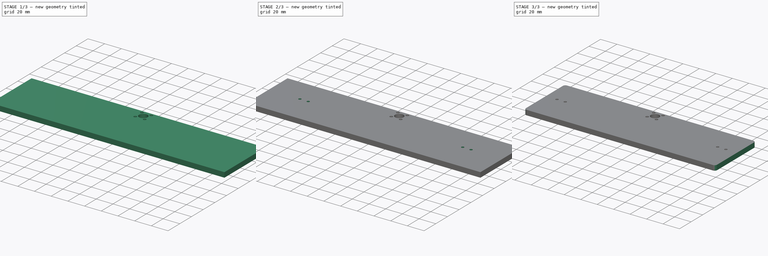
[diagram: build sequence overview — one tinted view per stage of 3, left to right]
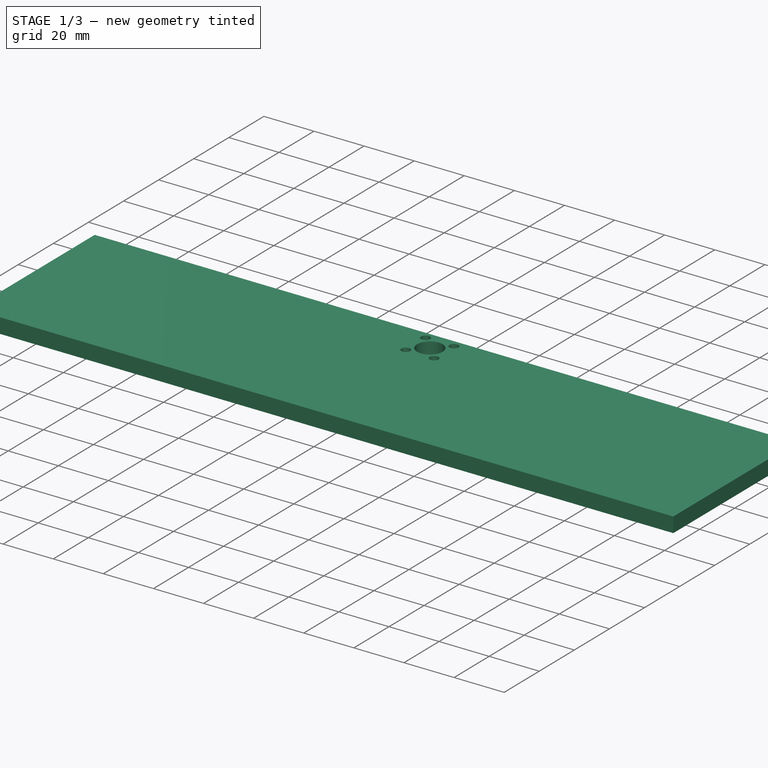
[diagram: stage 1 of 3 — iso view after this stage's code; geometry added in this stage tinted green]
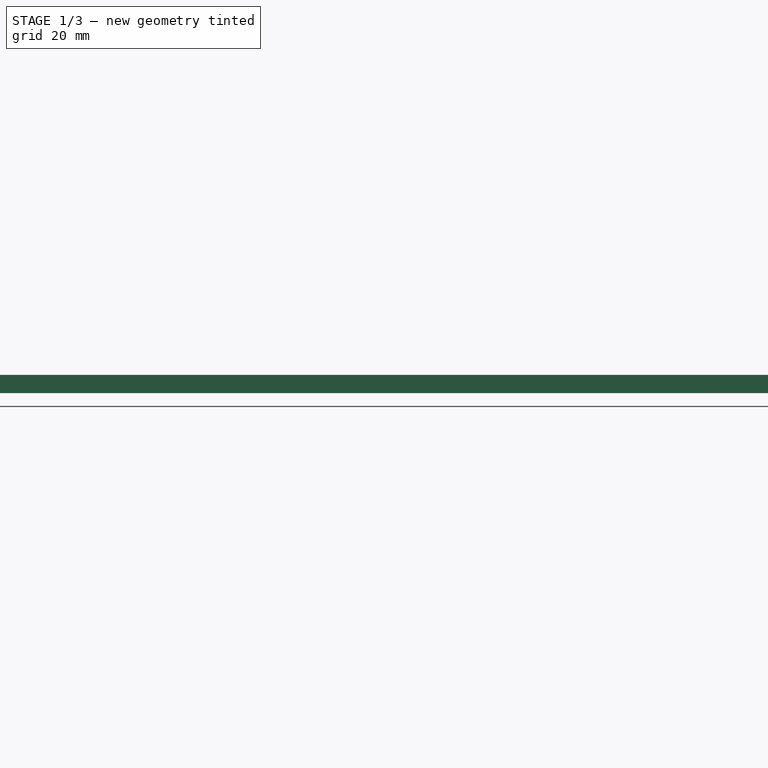
[diagram: stage 1 of 3 — front view after this stage's code; geometry added in this stage tinted green]
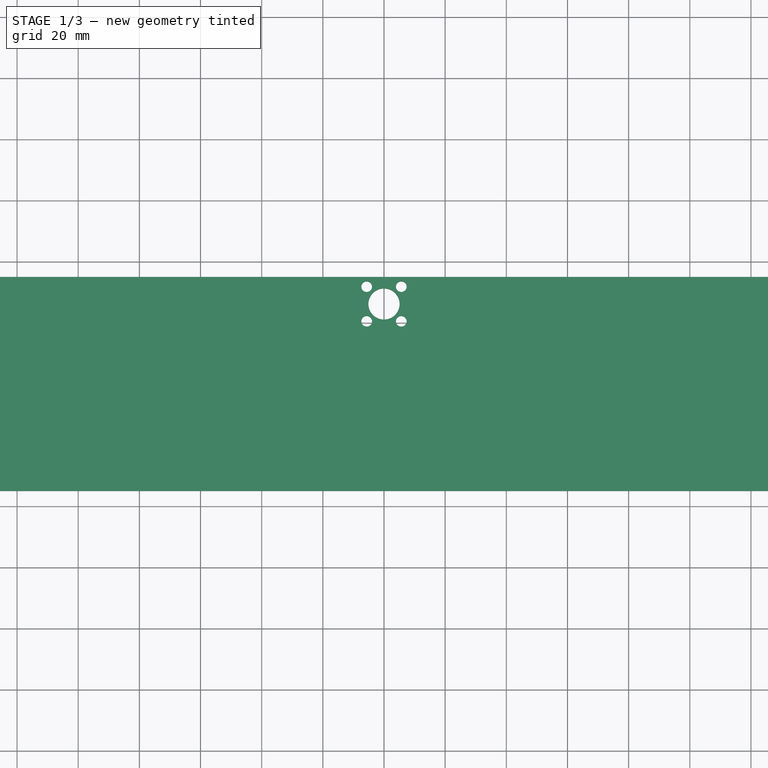
[diagram: stage 1 of 3 — top view after this stage's code; geometry added in this stage tinted green]
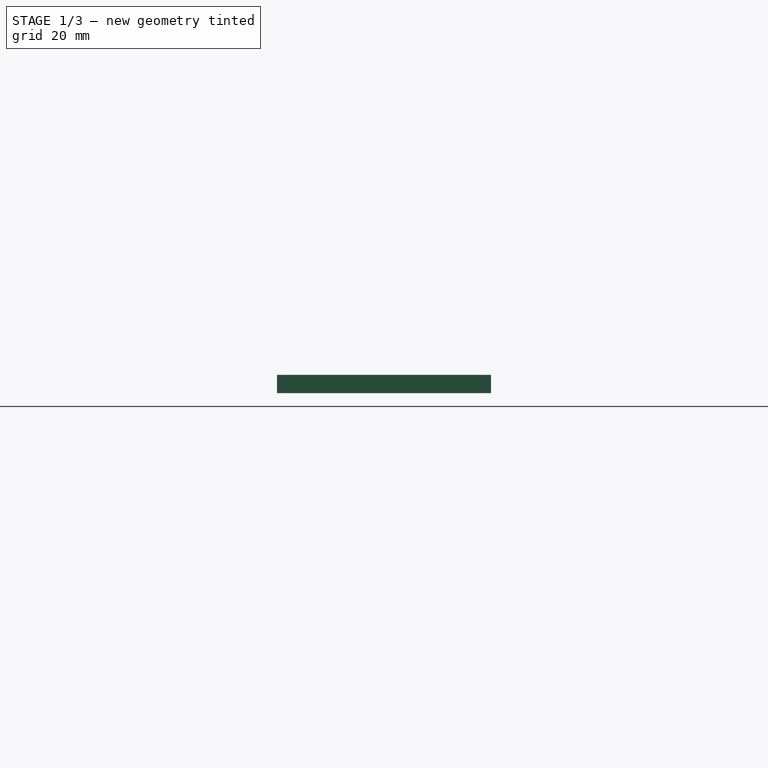
[diagram: stage 1 of 3 — right view after this stage's code; geometry added in this stage tinted green]
FCSTD DOCUMENT  (FreeCAD 0.19R24291 (Git))
Label: prt_plaque_ascenseur
License: All rights reserved
LicenseURL: http://en.wikipedia.org/wiki/All_rights_reserved
objects: Sketcher::SketchObject×4, PartDesign::Pocket×3, PartDesign::Pad×1, PartDesign::Mirrored×1, PartDesign::Fillet×1, PartDesign::Body×1
note: 16 computed .brp shape members not serialized (recipe doc carries the construction recipe); baked Part::Feature solids carry a one-line shape summary decoded from their .brp

FEATURE [Sketcher::SketchObject] Sketch
  FullyConstrained = true
  MapMode = 5
  Support = -> [XY_Plane]
  sketch-geometry (6):
    g0: LineSegment StartX=-140 StartY=-35 StartZ=0 EndX=140 EndY=-35 EndZ=0
    g1: LineSegment StartX=140 StartY=-35 StartZ=0 EndX=140 EndY=35 EndZ=0
    g2: LineSegment StartX=140 StartY=35 StartZ=0 EndX=-140 EndY=35 EndZ=0
    g3: LineSegment StartX=-140 StartY=35 StartZ=0 EndX=-140 EndY=-35 EndZ=0
    g4: LineSegment StartX=-140 StartY=-35 StartZ=0 EndX=140 EndY=35 EndZ=0
    g5: LineSegment StartX=-140 StartY=35 StartZ=0 EndX=140 EndY=-35 EndZ=0
  constraints (16):
    c: Coincident(g0,g1)
    c: Coincident(g1,g2)
    c: Coincident(g2,g3)
    c: Coincident(g3,g0)
    c: Horizontal(g0)
    c: Horizontal(g2)
    c: Vertical(g1)
    c: Vertical(g3)
    c: Coincident(g4,g0)
    c: Coincident(g4,g1)
    c: Coincident(g5,g2)
    c: Coincident(g5,g0)
    c: PointOnObject(g-1,g4)
    c: PointOnObject(g-1,g5)
    c: DistanceX(g2,g2) = 280
    c: DistanceY(g1,g1) = 70
FEATURE [PartDesign::Pad] Pad  label="Rectangle"
  Direction = (1,1,1)
  Length = 6
  Length2 = 100
  Profile = -> Sketch
  Type = 0
FEATURE [Sketcher::SketchObject] Sketch001
  ExternalGeometry = -> [Pad]
  FullyConstrained = true
  MapMode = 5
  Placement = pos=(0,0,6) rot=(0,0,1;0rad)
  Support = -> [Pad]
  sketch-geometry (11):
    g0: Circle CenterX=0 CenterY=26.15 CenterZ=0 NormalX=0 NormalY=0 NormalZ=1 AngleXU=0 Radius=5.1
    g1: LineSegment StartX=-5.65685 StartY=20.4931 StartZ=0 EndX=5.65685 EndY=20.4931 EndZ=0
    g2: LineSegment StartX=5.65685 StartY=20.4931 StartZ=0 EndX=5.65685 EndY=31.8069 EndZ=0
    g3: LineSegment StartX=5.65685 StartY=31.8069 StartZ=0 EndX=-5.65685 EndY=31.8069 EndZ=0
    g4: LineSegment StartX=-5.65685 StartY=31.8069 StartZ=0 EndX=-5.65685 EndY=20.4931 EndZ=0
    g5: LineSegment StartX=-5.65685 StartY=31.8069 StartZ=0 EndX=5.65685 EndY=20.4931 EndZ=0
    g6: LineSegment StartX=-5.65685 StartY=20.4931 StartZ=0 EndX=5.65685 EndY=31.8069 EndZ=0
    g7: Circle CenterX=-5.65685 CenterY=31.8069 CenterZ=0 NormalX=0 NormalY=0 NormalZ=1 AngleXU=0 Radius=1.75
    g8: Circle CenterX=-5.65685 CenterY=20.4931 CenterZ=0 NormalX=0 NormalY=0 NormalZ=1 AngleXU=0 Radius=1.75
    g9: Circle CenterX=5.65685 CenterY=31.8069 CenterZ=0 NormalX=0 NormalY=0 NormalZ=1 AngleXU=0 Radius=1.75
    g10: Circle CenterX=5.65685 CenterY=20.4931 CenterZ=0 NormalX=0 NormalY=0 NormalZ=1 AngleXU=0 Radius=1.75
  constraints (27):
    c: PointOnObject(g0,g-2)
    c: Radius(g0) = 5.1
    c: Coincident(g1,g2)
    c: Coincident(g2,g3)
    c: Coincident(g3,g4)
    c: Coincident(g4,g1)
    c: Horizontal(g1)
    c: Horizontal(g3)
    c: Vertical(g2)
    c: Vertical(g4)
    c: Coincident(g5,g3)
    c: Coincident(g5,g1)
    c: Coincident(g6,g1)
    c: Coincident(g6,g2)
    c: PointOnObject(g0,g6)
    c: PointOnObject(g0,g5)
    c: Equal(g3,g4)
    c: Coincident(g7,g3)
    c: Coincident(g8,g1)
    c: Coincident(g9,g2)
    c: Coincident(g10,g1)
    c: Radius(g7) = 1.75
    c: Equal(g7,g8)
    c: Equal(g8,g9)
    c: Equal(g9,g10)
    c: Distance(g8,g9) = 16
    c: DistanceY(g-4,g0) = 61.15
FEATURE [PartDesign::Pocket] Pocket  label="Fixation_Tige"
  BaseFeature = -> Pad
  Length = 5
  Length2 = 100
  Profile = -> Sketch001
  Type = 1
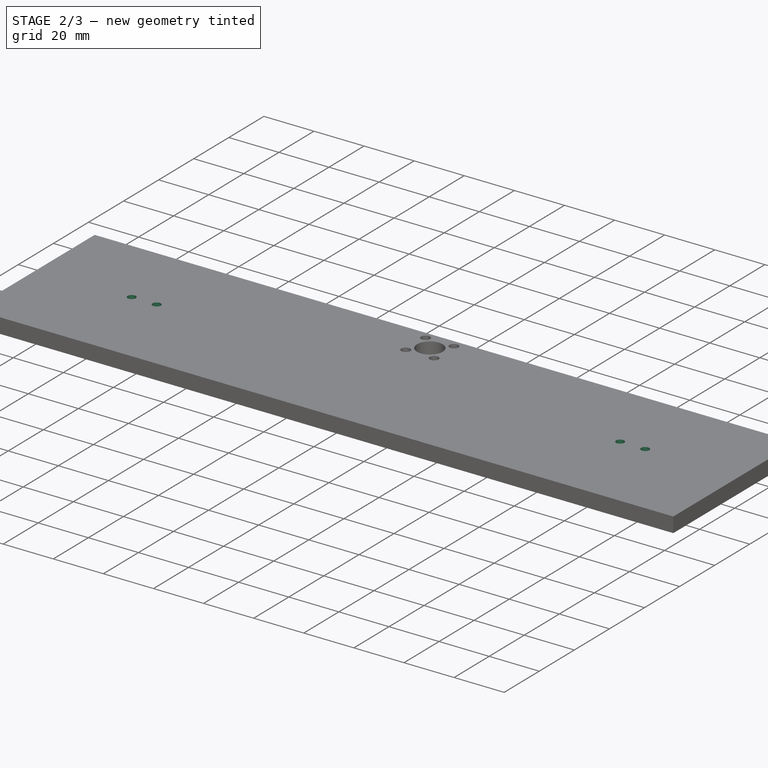
[diagram: stage 2 of 3 — iso view after this stage's code; geometry added in this stage tinted green]
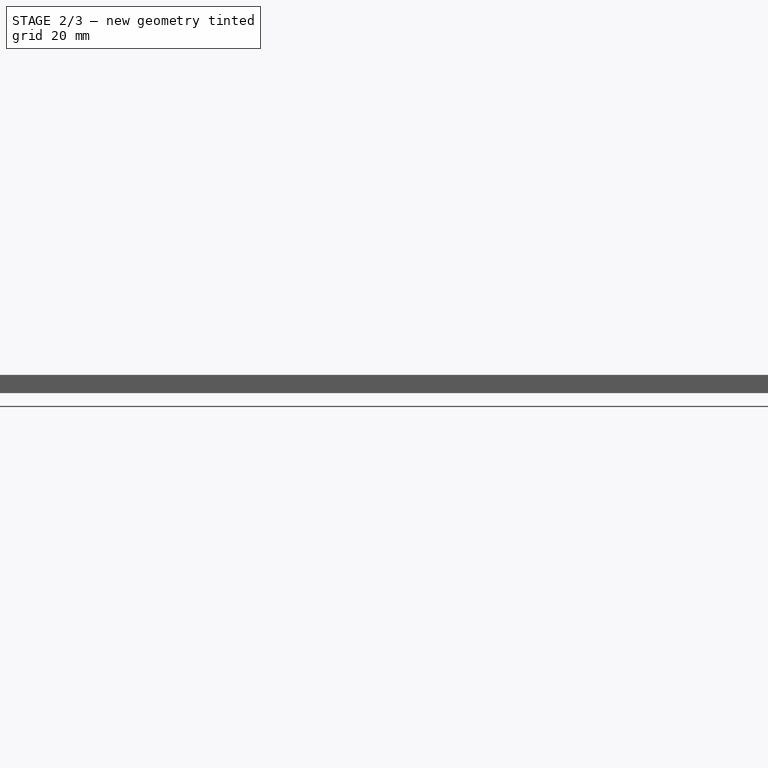
[diagram: stage 2 of 3 — front view after this stage's code; geometry added in this stage tinted green]
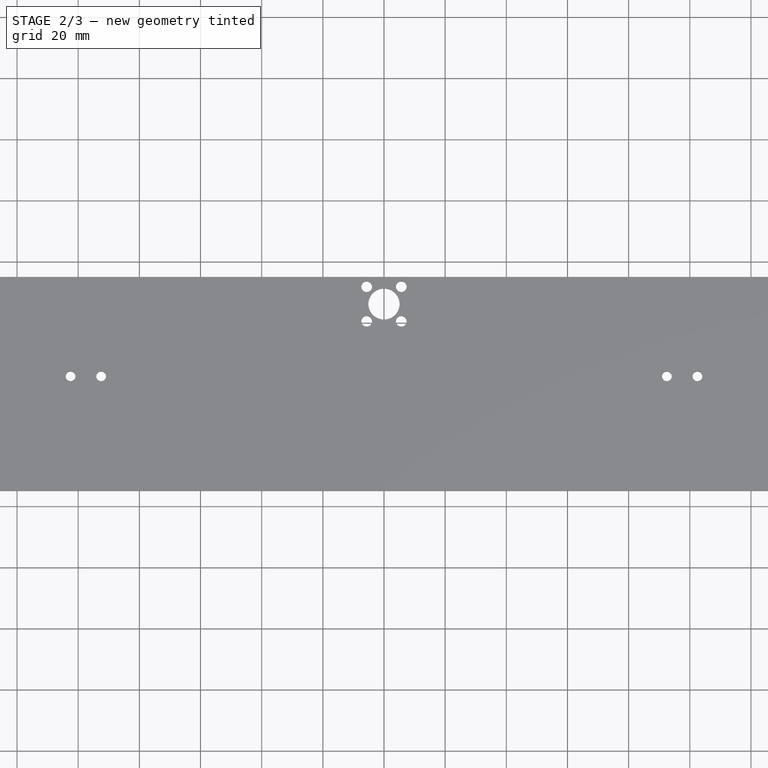
[diagram: stage 2 of 3 — top view after this stage's code; geometry added in this stage tinted green]
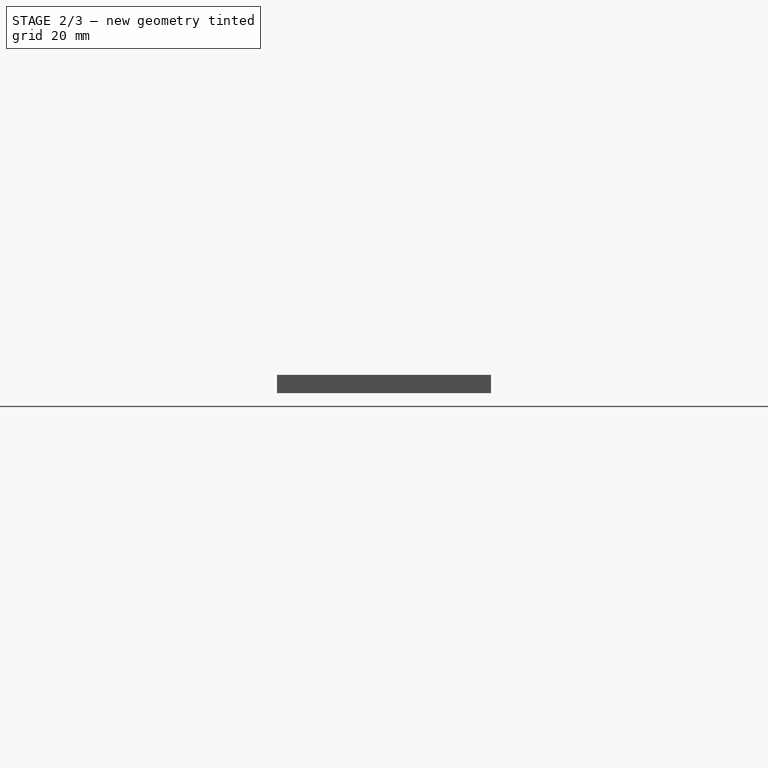
[diagram: stage 2 of 3 — right view after this stage's code; geometry added in this stage tinted green]
FEATURE [Sketcher::SketchObject] Sketch002
  ExternalGeometry = -> [Pocket]
  FullyConstrained = false
  MapMode = 5
  Placement = pos=(0,0,6) rot=(0,0,1;0rad)
  Support = -> [Pocket]
  sketch-geometry (11):
    g0: LineSegment StartX=-120 StartY=-2.5 StartZ=0 EndX=-87.5 EndY=-2.5 EndZ=0
    g1: LineSegment StartX=-87.5 StartY=-2.5 StartZ=0 EndX=-87.5 EndY=7.5 EndZ=0
    g2: LineSegment StartX=-87.5 StartY=7.5 StartZ=0 EndX=-120 EndY=7.5 EndZ=0
    g3: LineSegment StartX=-120 StartY=7.5 StartZ=0 EndX=-120 EndY=-2.5 EndZ=0
    g4: LineSegment StartX=-120 StartY=2.5 StartZ=0 EndX=-87.5 EndY=2.5 EndZ=0
    g5: Circle CenterX=-102.5 CenterY=2.5 CenterZ=0 NormalX=0 NormalY=0 NormalZ=1 AngleXU=0 Radius=1.6
    g6: Circle CenterX=-92.5 CenterY=2.5 CenterZ=0 NormalX=0 NormalY=0 NormalZ=1 AngleXU=0 Radius=1.6
    g7: LineSegment StartX=-130 StartY=35 StartZ=0 EndX=-130 EndY=-35 EndZ=0
    g8: LineSegment StartX=-120 StartY=35 StartZ=0 EndX=-120 EndY=-35 EndZ=0
    g9: LineSegment StartX=-130 StartY=15 StartZ=0 EndX=-130 EndY=5 EndZ=0
    g10: GeomPoint X=-135 Y=10 Z=0
  constraints (32):
    c: Coincident(g0,g1)
    c: Coincident(g1,g2)
    c: Coincident(g2,g3)
    c: Coincident(g3,g0)
    c: Horizontal(g0)
    c: Horizontal(g2)
    c: Vertical(g1)
    c: Vertical(g3)
    c: DistanceX(g2,g2) = 32.5
    c: PointOnObject(g4,g3)
    c: Horizontal(g4)
    c: DistanceY(g1,g1) = 10
    c: PointOnObject(g5,g4)
    c: PointOnObject(g6,g4)
    c: DistanceX(g6,g0) = 5
    c: Symmetric(g0,g1,g4)
    c: DistanceX(g5,g6) = 10
    c: DistanceY(g4,g-6) = 23.65
    c: PointOnObject(g7,g-5)
    c: PointOnObject(g7,g-4)
    c: Vertical(g7)
    c: DistanceX(g-5,g7) = 10
    c: PointOnObject(g8,g-5)
    c: PointOnObject(g8,g-4)
    c: Vertical(g8)
    c: DistanceX(g7,g8) = 10
    c: PointOnObject(g2,g8)
    c: Radius(g5) = 1.6
    c: Equal(g6,g5)
    c: Vertical(g9)
    c: PointOnObject(g9,g7)
    c: DistanceY(g4,g10) = 7.5
FEATURE [PartDesign::Pocket] Pocket001  label="Fixation_MakerBeam"
  BaseFeature = -> Pocket
  Length = 5
  Length2 = 100
  Profile = -> Sketch002
  Type = 1
FEATURE [PartDesign::Mirrored] Mirrored  label="Fixation_MakerBeam_2"
  BaseFeature = -> Pocket001
  MirrorPlane = -> Sketch002 [V_Axis]
  Originals = -> [Pocket001]
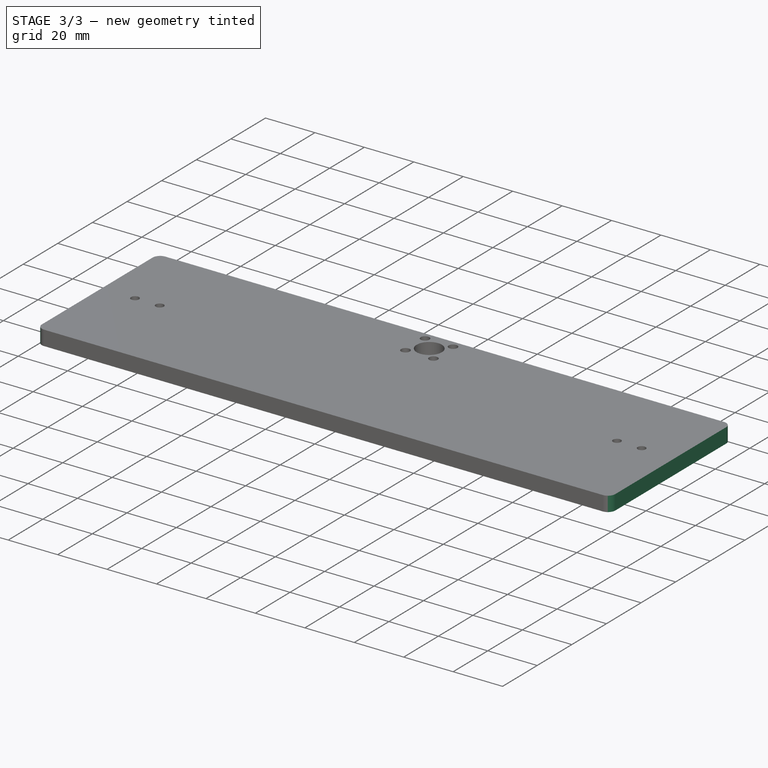
[diagram: stage 3 of 3 — iso view after this stage's code; geometry added in this stage tinted green]
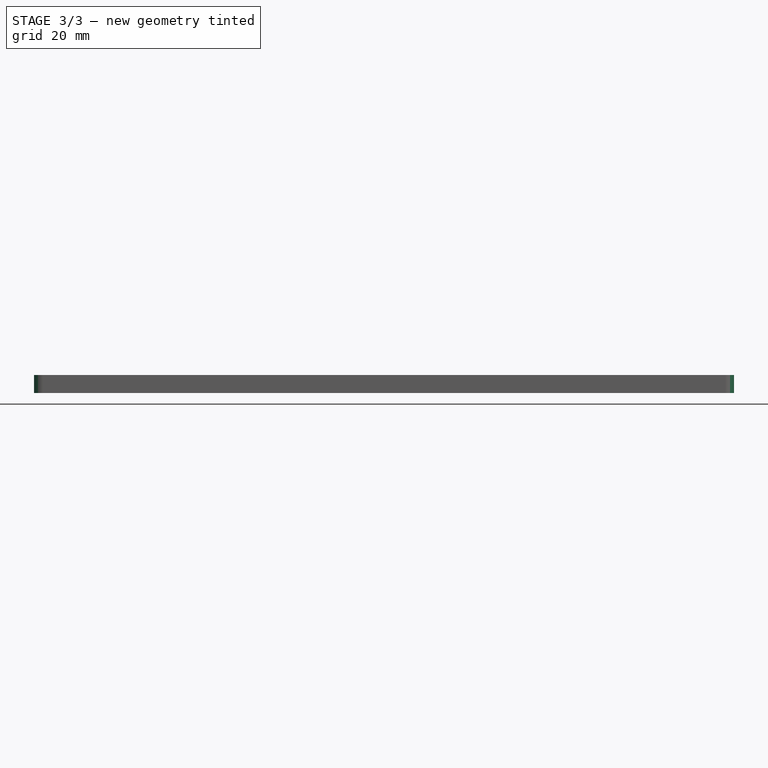
[diagram: stage 3 of 3 — front view after this stage's code; geometry added in this stage tinted green]
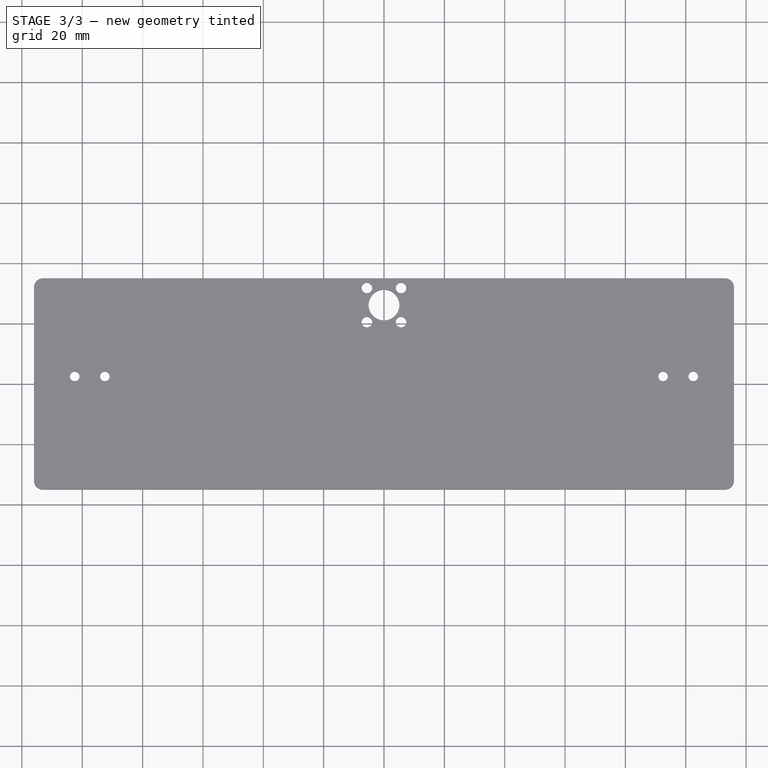
[diagram: stage 3 of 3 — top view after this stage's code; geometry added in this stage tinted green]
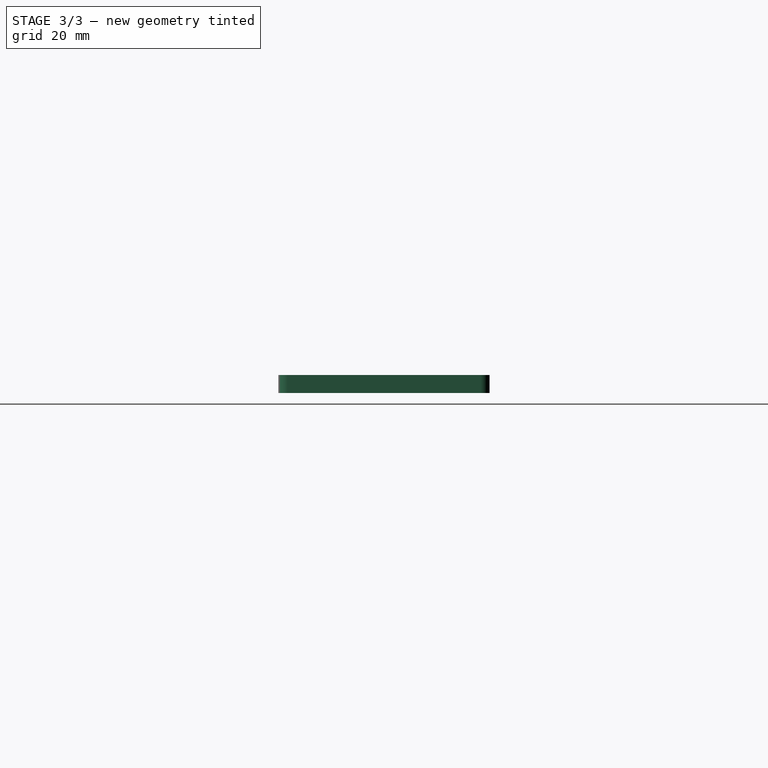
[diagram: stage 3 of 3 — right view after this stage's code; geometry added in this stage tinted green]
FEATURE [Sketcher::SketchObject] Sketch003
  ExternalGeometry = -> [Mirrored]
  FullyConstrained = true
  MapMode = 5
  Placement = pos=(0,0,6) rot=(0,0,1;0rad)
  Support = -> [Mirrored]
  sketch-geometry (8):
    g0: LineSegment StartX=-140 StartY=35 StartZ=0 EndX=-116 EndY=35 EndZ=0
    g1: LineSegment StartX=-116 StartY=35 StartZ=0 EndX=-116 EndY=-35 EndZ=0
    g2: LineSegment StartX=-116 StartY=-35 StartZ=0 EndX=-140 EndY=-35 EndZ=0
    g3: LineSegment StartX=-140 StartY=-35 StartZ=0 EndX=-140 EndY=35 EndZ=0
    g4: LineSegment StartX=140 StartY=-35 StartZ=0 EndX=116 EndY=-35 EndZ=0
    g5: LineSegment StartX=116 StartY=-35 StartZ=0 EndX=116 EndY=35 EndZ=0
    g6: LineSegment StartX=116 StartY=35 StartZ=0 EndX=140 EndY=35 EndZ=0
    g7: LineSegment StartX=140 StartY=35 StartZ=0 EndX=140 EndY=-35 EndZ=0
  constraints (22):
    c: Coincident(g0,g1)
    c: Coincident(g1,g2)
    c: Coincident(g2,g3)
    c: Coincident(g3,g0)
    c: Horizontal(g0)
    c: Horizontal(g2)
    c: Vertical(g1)
    c: Vertical(g3)
    c: Coincident(g0,g-3)
    c: PointOnObject(g1,g-4)
    c: DistanceX(g0,g0) = 24
    c: Coincident(g4,g5)
    c: Coincident(g5,g6)
    c: Coincident(g6,g7)
    c: Coincident(g7,g4)
    c: Horizontal(g4)
    c: Horizontal(g6)
    c: Vertical(g5)
    c: Vertical(g7)
    c: Coincident(g4,g-4)
    c: PointOnObject(g5,g-3)
    c: Equal(g6,g0)
FEATURE [PartDesign::Pocket] Pocket002  label="Cut"
  BaseFeature = -> Mirrored
  Length = 5
  Length2 = 100
  Profile = -> Sketch003
  Type = 1
FEATURE [PartDesign::Fillet] Fillet
  Base = -> Pocket002 [Edge18,Edge2,Edge30,Edge4]
  BaseFeature = -> Pocket002
  Radius = 3
  SupportTransform = false
FEATURE [PartDesign::Body] Body
  Group = -> [Sketch,Pad,Sketch001,Pocket,Sketch002,Pocket001,Mirrored,Sketch003,Pocket002,Fillet]
  Origin = -> Origin
  Tip = -> Fillet
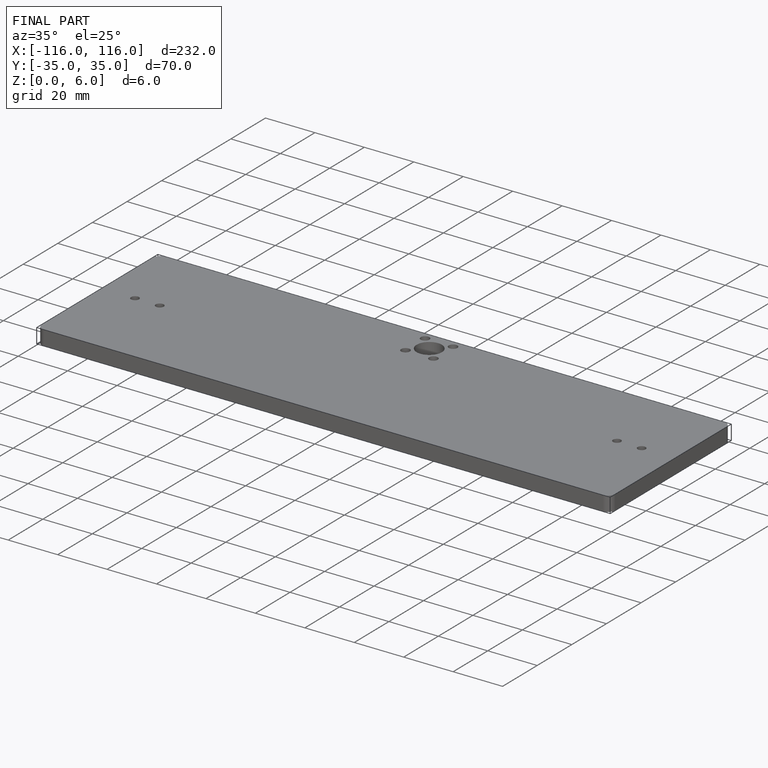
[diagram: finished part — iso view with bounding-box wireframe]
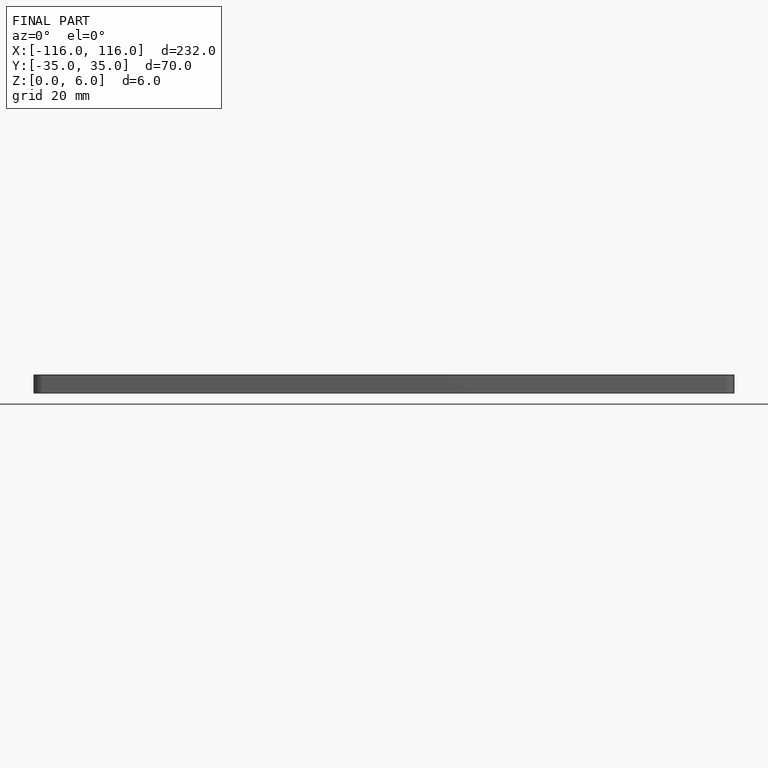
[diagram: finished part — front view with bounding-box wireframe]
